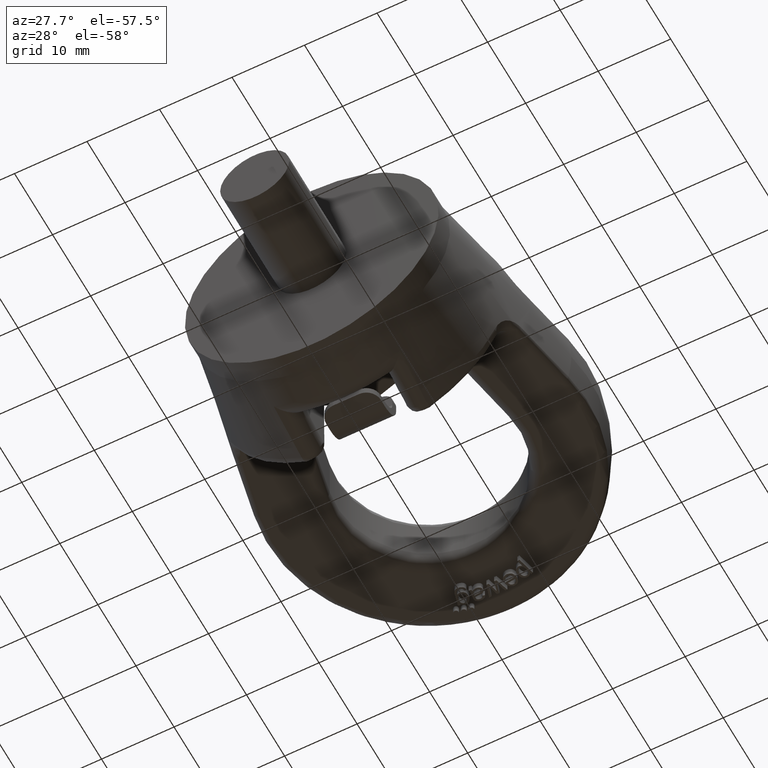
[diagram: clean part render]
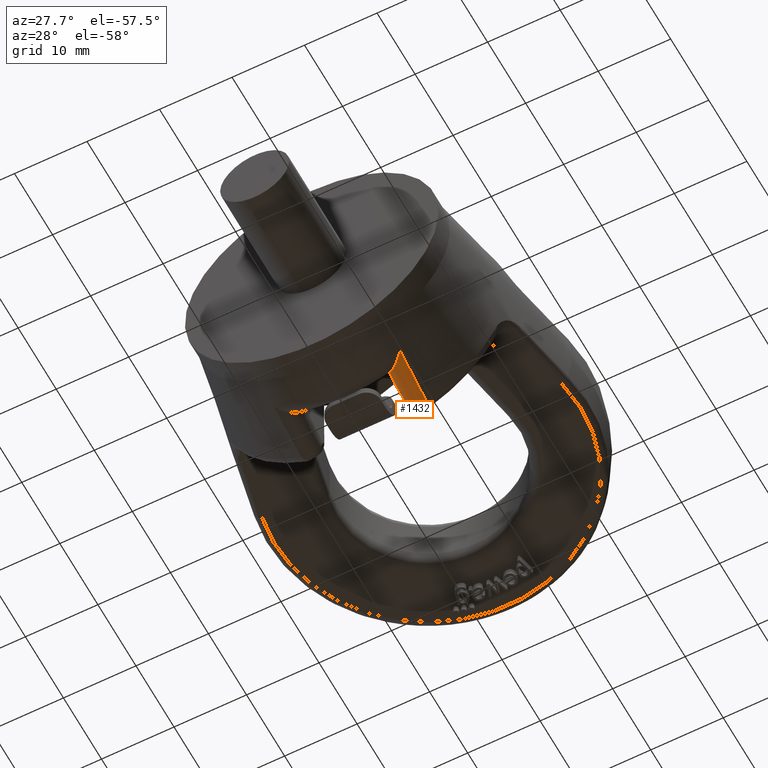
[diagram: same view with one face highlighted and labeled with its STEP entity id]
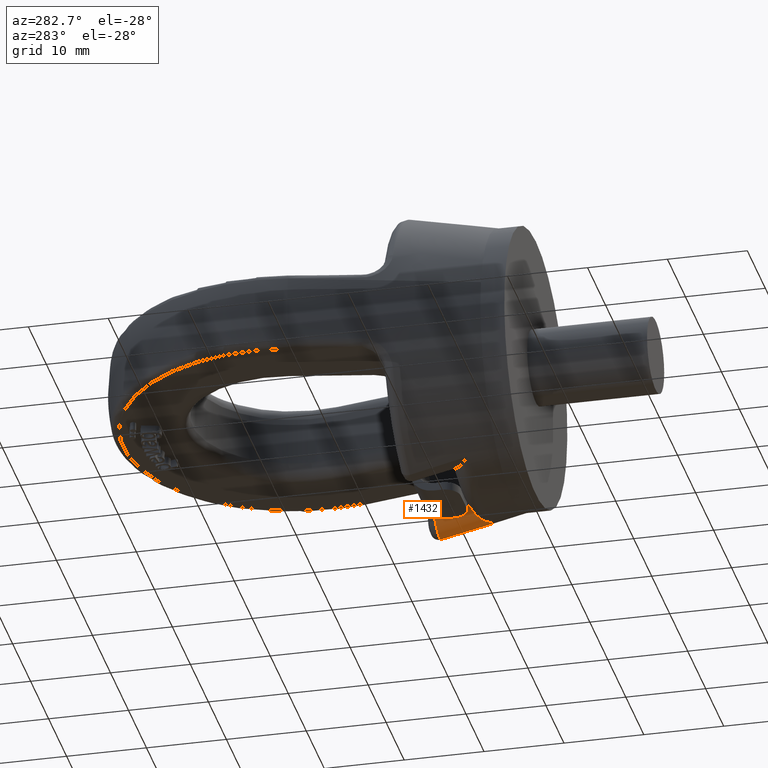
[diagram: same view with one face highlighted and labeled with its STEP entity id]
A machine part, auxiliary view. The second image highlights one B-rep face of the part: STEP entity #1432.
A second angle (auxiliary view) of the same face is appended — the face is thin or edge-on in the first view.
In plain terms, the highlighted face is a freeform B-spline surface patch.
Its self-contained STEP definition (entity closure, byte-faithful):
#1035=(
BOUNDED_SURFACE()
B_SPLINE_SURFACE(3,2,((#8544,#8545,#8546),(#8547,#8548,#8549),(#8550,#8551,
#8552),(#8553,#8554,#8555)),.UNSPECIFIED.,.F.,.F.,.F.)
B_SPLINE_SURFACE_WITH_KNOTS((4,4),(3,3),(0.,1.),(0.,1.),.UNSPECIFIED.)
GEOMETRIC_REPRESENTATION_ITEM()
RATIONAL_B_SPLINE_SURFACE(((1.,0.533526596298603,1.),(1.,0.528032462580096,
1.),(1.,0.522015283834511,1.),(1.,0.515281518223323,1.)))
REPRESENTATION_ITEM('')
SURFACE()
);
#1200=FACE_OUTER_BOUND('',#1963,.T.);
#1432=ADVANCED_FACE('',(#1200),#1035,.T.);
#1963=EDGE_LOOP('',(#3368,#3369,#3370,#3371,#3372));
#3368=ORIENTED_EDGE('',*,*,#4625,.F.);
#3369=ORIENTED_EDGE('',*,*,#4642,.T.);
#3370=ORIENTED_EDGE('',*,*,#4378,.F.);
#3371=ORIENTED_EDGE('',*,*,#4643,.F.);
#3372=ORIENTED_EDGE('',*,*,#4627,.F.);
#3988=VERTEX_POINT('',#6780);
#3989=VERTEX_POINT('',#6788);
#4142=VERTEX_POINT('',#8401);
#4143=VERTEX_POINT('',#8409);
#4144=VERTEX_POINT('',#8416);
#4378=EDGE_CURVE('',#3988,#3989,#4890,.T.);
#4625=EDGE_CURVE('',#4142,#4143,#5016,.T.);
#4627=EDGE_CURVE('',#4143,#4144,#5017,.T.);
#4642=EDGE_CURVE('',#4142,#3989,#5022,.T.);
#4643=EDGE_CURVE('',#4144,#3988,#5023,.T.);
#4890=B_SPLINE_CURVE_WITH_KNOTS('',3,(#6781,#6782,#6783,#6784,#6785,#6786,
#6787),.UNSPECIFIED.,.F.,.F.,(4,3,4),(0.,0.72780616167304,1.),
 .UNSPECIFIED.);
#5016=B_SPLINE_CURVE_WITH_KNOTS('',3,(#8402,#8403,#8404,#8405,#8406,#8407,
#8408),.UNSPECIFIED.,.F.,.F.,(4,3,4),(0.,0.352965068508808,1.),
 .UNSPECIFIED.);
#5017=B_SPLINE_CURVE_WITH_KNOTS('',3,(#8412,#8413,#8414,#8415),
 .UNSPECIFIED.,.F.,.F.,(4,4),(0.,1.),.UNSPECIFIED.);
#5022=B_SPLINE_CURVE_WITH_KNOTS('',3,(#8503,#8504,#8505,#8506,#8507,#8508,
#8509,#8510,#8511,#8512,#8513,#8514,#8515,#8516,#8517,#8518,#8519,#8520,
#8521),.UNSPECIFIED.,.F.,.F.,(4,3,3,3,3,3,4),(0.,0.181500316837976,0.347183037317764,
0.510450489574479,0.673046276981566,0.836657461783817,1.),.UNSPECIFIED.);
#5023=B_SPLINE_CURVE_WITH_KNOTS('',3,(#8522,#8523,#8524,#8525,#8526,#8527,
#8528,#8529,#8530,#8531,#8532,#8533,#8534,#8535,#8536,#8537,#8538,#8539,
#8540,#8541,#8542,#8543),.UNSPECIFIED.,.F.,.F.,(4,3,3,3,3,3,3,4),(0.,0.108197802311181,
0.216202836730077,0.324860037177199,0.494894794427188,0.731648078391967,
0.997859452658328,1.),.UNSPECIFIED.);
#6780=CARTESIAN_POINT('',(8.70244624581684,6.61221021087526,-16.0004677210185));
#6781=CARTESIAN_POINT('',(8.70244624581684,6.61221021087526,-16.0004677210185));
#6782=CARTESIAN_POINT('',(8.6825641537113,8.35615279141847,-16.4036468635928));
#6783=CARTESIAN_POINT('',(8.66393059000072,10.1011653616859,-16.8022769171973));
#6784=CARTESIAN_POINT('',(8.64633826945186,11.8469904147329,-17.1973336691158));
#6785=CARTESIAN_POINT('',(8.63975886515626,12.499916719792,-17.3450821189783));
#6786=CARTESIAN_POINT('',(8.63332558063708,13.1529584586085,-17.4923277743214));
#6787=CARTESIAN_POINT('',(8.62702918810319,13.8061051054376,-17.6391115132458));
#6788=CARTESIAN_POINT('',(8.62702918810319,13.8061051054376,-17.6391115132458));
#8401=CARTESIAN_POINT('',(5.76500000000004,14.,-15.8339063606185));
#8402=CARTESIAN_POINT('',(5.76500000000004,14.,-15.8339063606185));
#8403=CARTESIAN_POINT('',(5.76500000000004,13.4115269990077,-15.7043640581162));
#8404=CARTESIAN_POINT('',(5.76500000000004,12.8231185810263,-15.57452796947));
#8405=CARTESIAN_POINT('',(5.76500000000004,12.2347802038577,-15.4443756164944));
#8406=CARTESIAN_POINT('',(5.76500000000004,11.1562729470869,-15.2057879896843));
#8407=CARTESIAN_POINT('',(5.76500000000004,10.0779996928112,-14.9661393157164));
#8408=CARTESIAN_POINT('',(5.76500000000003,9.,-14.7252687677593));
#8409=CARTESIAN_POINT('',(5.76500000000003,9.,-14.7252687677593));
#8412=CARTESIAN_POINT('',(5.76500000000003,9.,-14.7252687677593));
#8413=CARTESIAN_POINT('',(5.76499999999992,9.,-14.876507739764));
#8414=CARTESIAN_POINT('',(5.78152179005185,9.,-15.0286267118552));
#8415=CARTESIAN_POINT('',(5.81404682029522,9.,-15.1763269117897));
#8416=CARTESIAN_POINT('',(5.81404682029522,9.,-15.1763269117897));
#8503=CARTESIAN_POINT('',(5.76500000000004,14.,-15.8339063606185));
#8504=CARTESIAN_POINT('',(5.76500000000004,13.9740504919839,-16.0753808368262));
#8505=CARTESIAN_POINT('',(5.81012251688522,13.9476950515117,-16.3206846777269));
#8506=CARTESIAN_POINT('',(5.89617541170012,13.9234386056247,-16.546493941826));
#8507=CARTESIAN_POINT('',(5.97493653488078,13.9012375521152,-16.753169049076));
#8508=CARTESIAN_POINT('',(6.09001961623134,13.880168120471,-16.9493466931022));
#8509=CARTESIAN_POINT('',(6.23231804134365,13.8619347895029,-17.1191392286));
#8510=CARTESIAN_POINT('',(6.37258333043425,13.8439619733084,-17.2865057968402));
#8511=CARTESIAN_POINT('',(6.54299269672759,13.8282698019639,-17.4326581852562));
#8512=CARTESIAN_POINT('',(6.73019026253312,13.8161146726185,-17.5458759656496));
#8513=CARTESIAN_POINT('',(6.91662107528508,13.804009330152,-17.6586300109594));
#8514=CARTESIAN_POINT('',(7.1246152297202,13.7950947567964,-17.7416739238914));
#8515=CARTESIAN_POINT('',(7.33773056438413,13.7900904489668,-17.7882923003918));
#8516=CARTESIAN_POINT('',(7.55213094399001,13.7850559661126,-17.8351917768375));
#8517=CARTESIAN_POINT('',(7.77743660232921,13.783847118816,-17.8464537299583));
#8518=CARTESIAN_POINT('',(7.99548418763548,13.786563379754,-17.8211495375733));
#8519=CARTESIAN_POINT('',(8.21318888204047,13.7892753692336,-17.7958851373159));
#8520=CARTESIAN_POINT('',(8.42947311430941,13.7959716223585,-17.7335037216168));
#8521=CARTESIAN_POINT('',(8.62702918810319,13.8061051054376,-17.6391115132458));
#8522=CARTESIAN_POINT('',(5.81404682029522,9.,-15.1763269117897));
#8523=CARTESIAN_POINT('',(5.84845725109074,9.,-15.3325889496818));
#8524=CARTESIAN_POINT('',(5.90311819109548,8.98032090833168,-15.486930221538));
#8525=CARTESIAN_POINT('',(5.97431591642606,8.94242453327141,-15.6251208539946));
#8526=CARTESIAN_POINT('',(6.04546550835717,8.90455377814985,-15.76321806233));
#8527=CARTESIAN_POINT('',(6.1348164900916,8.84772378686214,-15.8888715178486));
#8528=CARTESIAN_POINT('',(6.23365856236087,8.77892562794363,-15.994058758303));
#8529=CARTESIAN_POINT('',(6.33338063463226,8.70951495272914,-16.1001824903718));
#8530=CARTESIAN_POINT('',(6.44477554543966,8.62665506449563,-16.1883195376111));
#8531=CARTESIAN_POINT('',(6.55999041126915,8.53740783712135,-16.2574935727538));
#8532=CARTESIAN_POINT('',(6.73923390625422,8.39856303756253,-16.3651098576137));
#8533=CARTESIAN_POINT('',(6.93230630832033,8.24083664748278,-16.4301901900051));
#8534=CARTESIAN_POINT('',(7.12257030445486,8.07996590387747,-16.4603164120191));
#8535=CARTESIAN_POINT('',(7.3867418449051,7.85660534688832,-16.5021450850159));
#8536=CARTESIAN_POINT('',(7.65406421663369,7.62001964027723,-16.4789391627531));
#8537=CARTESIAN_POINT('',(7.90493345565041,7.38851291468307,-16.408971741714));
#8538=CARTESIAN_POINT('',(8.18718544546328,7.12804561223449,-16.3302516726941));
#8539=CARTESIAN_POINT('',(8.45658820676846,6.86663086209797,-16.1903799880487));
#8540=CARTESIAN_POINT('',(8.69663684041533,6.6182252407399,-16.004968145313));
#8541=CARTESIAN_POINT('',(8.69857502881105,6.61621957678158,-16.003471102499));
#8542=CARTESIAN_POINT('',(8.70051146501411,6.61421452348044,-16.0019709686974));
#8543=CARTESIAN_POINT('',(8.70244624581684,6.61221021087526,-16.0004677210185));
#8544=CARTESIAN_POINT('',(8.62639748416815,13.8716820021429,-17.6538471882087));
#8545=CARTESIAN_POINT('',(5.76500000000004,13.5783038090567,-18.9875066682578));
#8546=CARTESIAN_POINT('',(5.76500000000004,14.2594717912677,-15.8910047523343));
#8547=CARTESIAN_POINT('',(8.64984157208299,11.4361771885305,-17.1066294920604));
#8548=CARTESIAN_POINT('',(5.76500000000223,11.1032804497857,-18.4902581971463));
#8549=CARTESIAN_POINT('',(5.76500000000004,11.8239680940952,-15.3552430496034));
#8550=CARTESIAN_POINT('',(8.67517520774075,9.00172886180742,-16.5530070014431));
#8551=CARTESIAN_POINT('',(5.76500000000431,8.64671578484192,-17.9971122687967));
#8552=CARTESIAN_POINT('',(5.76500000000003,9.38952032603881,-14.814559970223));
#8553=CARTESIAN_POINT('',(8.7029398279099,6.56893881631095,-15.9904628891826));
#8554=CARTESIAN_POINT('',(5.76500000000004,6.22646906023201,-17.5123971289691));
#8555=CARTESIAN_POINT('',(5.76500000000003,6.95672860543569,-14.2671266020143));